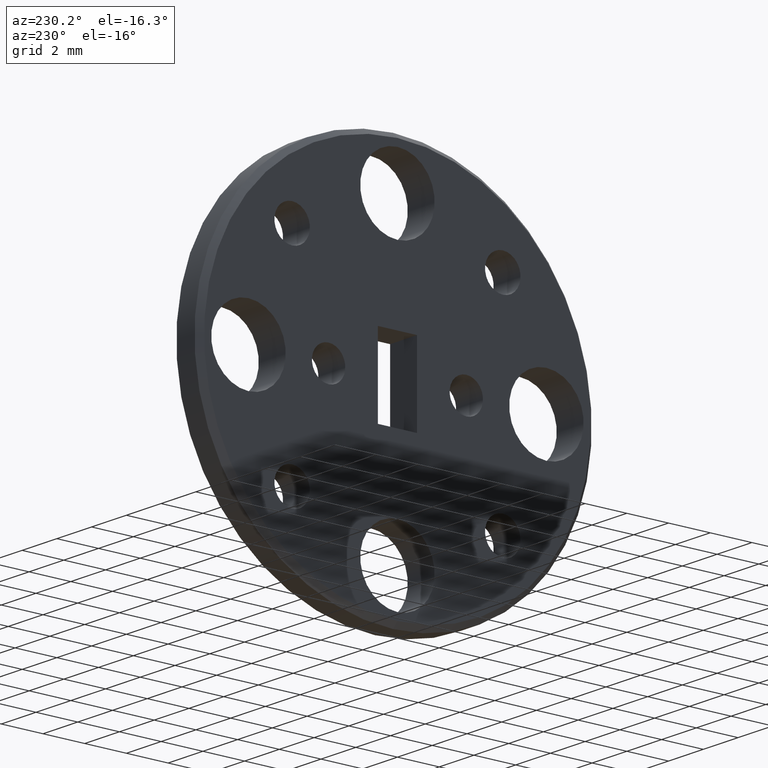
[diagram: clean part render]
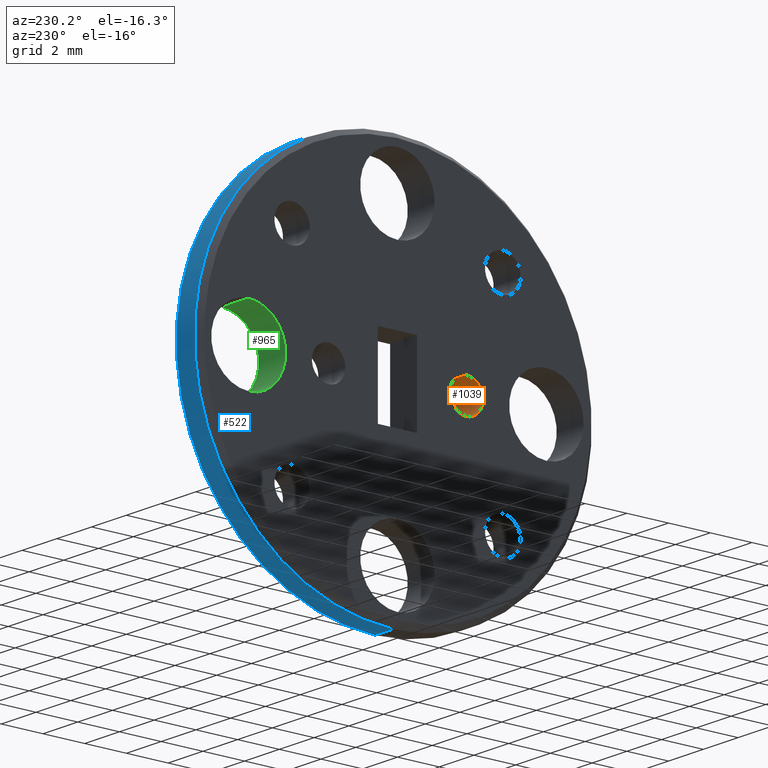
[diagram: same view with three faces highlighted in distinct colors, each labeled with its STEP entity id]
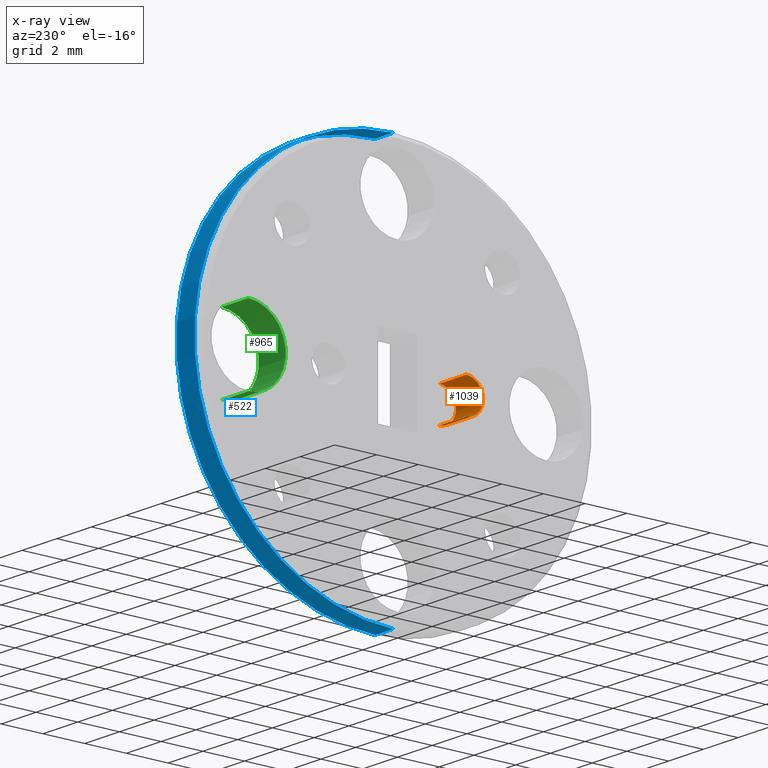
[diagram: x-ray of the same camera — body ghosted, the three highlighted faces saturated]
A machine part, auxiliary view with three faces highlighted in distinct colors.
The next image is the same camera in x-ray (body ghosted, the three faces saturated) — at least one of them is partly hidden behind the body in this view.
Their STEP definitions:

[orange] entity #1039 — the highlighted cylindrical surface (edge-blend (fillet) strip) has radius 0.8001 mm, axis along (-1, -0, -0).
#12 = ORIENTED_EDGE ( 'NONE', *, *, #174, .T. ) ;
#22 = ORIENTED_EDGE ( 'NONE', *, *, #876, .T. ) ;
#49 = CARTESIAN_POINT ( 'NONE',  ( 0.0000000000000000000, -0.1299999999999999800, 0.0000000000000000000 ) ) ;
#117 = CARTESIAN_POINT ( 'NONE',  ( -6.123233995736789800E-020, -0.1299999999999999800, -0.03149999999999999300 ) ) ;
#123 = CARTESIAN_POINT ( 'NONE',  ( 0.06100000000000001900, -0.1299999999999999800, 0.0000000000000000000 ) ) ;
#150 = DIRECTION ( 'NONE',  ( -1.000000000000000000, -0.0000000000000000000, -0.0000000000000000000 ) ) ;
#162 = VERTEX_POINT ( 'NONE', #117 ) ;
#174 = EDGE_CURVE ( 'NONE', #1105, #162, #629, .T. ) ;
#202 = ORIENTED_EDGE ( 'NONE', *, *, #398, .F. ) ;
#216 = CARTESIAN_POINT ( 'NONE',  ( 0.06100000000000001900, -0.1299999999999999800, 0.03149999999999999300 ) ) ;
#237 = LINE ( 'NONE', #769, #589 ) ;
#256 = VERTEX_POINT ( 'NONE', #216 ) ;
#315 = DIRECTION ( 'NONE',  ( 1.000000000000000000, -0.0000000000000000000, -0.0000000000000000000 ) ) ;
#322 = CIRCLE ( 'NONE', #572, 0.03149999999999999300 ) ;
#398 = EDGE_CURVE ( 'NONE', #256, #829, #237, .T. ) ;
#406 = FACE_OUTER_BOUND ( 'NONE', #936, .T. ) ;
#484 = CIRCLE ( 'NONE', #704, 0.03149999999999999300 ) ;
#503 = DIRECTION ( 'NONE',  ( 0.0000000000000000000, 0.0000000000000000000, 1.000000000000000000 ) ) ;
#572 = AXIS2_PLACEMENT_3D ( 'NONE', #943, #1024, #503 ) ;
#589 = VECTOR ( 'NONE', #610, 39.37007874015748100 ) ;
#610 = DIRECTION ( 'NONE',  ( -1.000000000000000000, -0.0000000000000000000, -0.0000000000000000000 ) ) ;
#629 = LINE ( 'NONE', #745, #797 ) ;
#674 = CARTESIAN_POINT ( 'NONE',  ( -6.123233995736789800E-020, -0.1299999999999999800, 0.03149999999999999300 ) ) ;
#676 = CYLINDRICAL_SURFACE ( 'NONE', #934, 0.03149999999999999300 ) ;
#704 = AXIS2_PLACEMENT_3D ( 'NONE', #123, #315, #1017 ) ;
#717 = CARTESIAN_POINT ( 'NONE',  ( 0.06100000000000001900, -0.1299999999999999800, -0.03149999999999999300 ) ) ;
#745 = CARTESIAN_POINT ( 'NONE',  ( 0.0000000000000000000, -0.1299999999999999800, -0.03149999999999999300 ) ) ;
#769 = CARTESIAN_POINT ( 'NONE',  ( 0.0000000000000000000, -0.1299999999999999800, 0.03149999999999999300 ) ) ;
#797 = VECTOR ( 'NONE', #920, 39.37007874015748100 ) ;
#829 = VERTEX_POINT ( 'NONE', #674 ) ;
#871 = DIRECTION ( 'NONE',  ( 0.0000000000000000000, 0.0000000000000000000, 1.000000000000000000 ) ) ;
#876 = EDGE_CURVE ( 'NONE', #256, #1105, #484, .T. ) ;
#894 = ORIENTED_EDGE ( 'NONE', *, *, #928, .T. ) ;
#920 = DIRECTION ( 'NONE',  ( -1.000000000000000000, -0.0000000000000000000, -0.0000000000000000000 ) ) ;
#928 = EDGE_CURVE ( 'NONE', #162, #829, #322, .T. ) ;
#934 = AXIS2_PLACEMENT_3D ( 'NONE', #49, #150, #871 ) ;
#936 = EDGE_LOOP ( 'NONE', ( #22, #12, #894, #202 ) ) ;
#943 = CARTESIAN_POINT ( 'NONE',  ( -6.123233995736789800E-020, -0.1299999999999999800, 0.0000000000000000000 ) ) ;
#1017 = DIRECTION ( 'NONE',  ( 0.0000000000000000000, 0.0000000000000000000, -1.000000000000000000 ) ) ;
#1024 = DIRECTION ( 'NONE',  ( -1.000000000000000000, -0.0000000000000000000, -0.0000000000000000000 ) ) ;
#1039 = ADVANCED_FACE ( 'NONE', ( #406 ), #676, .F. ) ;
#1105 = VERTEX_POINT ( 'NONE', #717 ) ;

[blue] entity #522 — the highlighted cylindrical surface (partial cylindrical patch) has radius 9.525 mm, axis along (1, -0, -0).
#5 = ORIENTED_EDGE ( 'NONE', *, *, #158, .T. ) ;
#24 = EDGE_CURVE ( 'NONE', #577, #890, #873, .T. ) ;
#78 = CARTESIAN_POINT ( 'NONE',  ( 0.01000000000000003000, 4.592425496802575500E-017, 0.3750000000000000600 ) ) ;
#101 = DIRECTION ( 'NONE',  ( 0.0000000000000000000, 0.0000000000000000000, -1.000000000000000000 ) ) ;
#106 = CARTESIAN_POINT ( 'NONE',  ( 0.0000000000000000000, 4.592425496802575500E-017, 0.3750000000000000600 ) ) ;
#144 = CARTESIAN_POINT ( 'NONE',  ( 0.05099999999999992000, 0.0000000000000000000, -0.3750000000000000600 ) ) ;
#153 = VERTEX_POINT ( 'NONE', #1103 ) ;
#158 = EDGE_CURVE ( 'NONE', #153, #577, #341, .T. ) ;
#207 = DIRECTION ( 'NONE',  ( 1.000000000000000000, -0.0000000000000000000, -0.0000000000000000000 ) ) ;
#265 = LINE ( 'NONE', #420, #278 ) ;
#278 = VECTOR ( 'NONE', #1118, 39.37007874015748100 ) ;
#281 = VECTOR ( 'NONE', #647, 39.37007874015748100 ) ;
#339 = CARTESIAN_POINT ( 'NONE',  ( 0.05099999999999992000, 0.0000000000000000000, 0.0000000000000000000 ) ) ;
#341 = CIRCLE ( 'NONE', #1080, 0.3750000000000000600 ) ;
#420 = CARTESIAN_POINT ( 'NONE',  ( 0.0000000000000000000, 0.0000000000000000000, -0.3750000000000000600 ) ) ;
#498 = FACE_OUTER_BOUND ( 'NONE', #818, .T. ) ;
#522 = ADVANCED_FACE ( 'NONE', ( #498 ), #599, .T. ) ;
#577 = VERTEX_POINT ( 'NONE', #78 ) ;
#599 = CYLINDRICAL_SURFACE ( 'NONE', #812, 0.3750000000000000600 ) ;
#647 = DIRECTION ( 'NONE',  ( 1.000000000000000000, -0.0000000000000000000, -0.0000000000000000000 ) ) ;
#665 = ORIENTED_EDGE ( 'NONE', *, *, #24, .T. ) ;
#759 = AXIS2_PLACEMENT_3D ( 'NONE', #339, #1132, #969 ) ;
#812 = AXIS2_PLACEMENT_3D ( 'NONE', #1144, #1054, #101 ) ;
#818 = EDGE_LOOP ( 'NONE', ( #5, #665, #1084, #988 ) ) ;
#873 = LINE ( 'NONE', #106, #281 ) ;
#890 = VERTEX_POINT ( 'NONE', #931 ) ;
#930 = DIRECTION ( 'NONE',  ( 0.0000000000000000000, 0.0000000000000000000, 1.000000000000000000 ) ) ;
#931 = CARTESIAN_POINT ( 'NONE',  ( 0.05099999999999992000, 4.592425496802575500E-017, 0.3750000000000000600 ) ) ;
#958 = VERTEX_POINT ( 'NONE', #144 ) ;
#962 = EDGE_CURVE ( 'NONE', #890, #958, #1060, .T. ) ;
#969 = DIRECTION ( 'NONE',  ( 0.0000000000000000000, 0.0000000000000000000, -1.000000000000000000 ) ) ;
#988 = ORIENTED_EDGE ( 'NONE', *, *, #1053, .F. ) ;
#1011 = CARTESIAN_POINT ( 'NONE',  ( 0.01000000000000003000, 0.0000000000000000000, 0.0000000000000000000 ) ) ;
#1053 = EDGE_CURVE ( 'NONE', #153, #958, #265, .T. ) ;
#1054 = DIRECTION ( 'NONE',  ( 1.000000000000000000, -0.0000000000000000000, -0.0000000000000000000 ) ) ;
#1060 = CIRCLE ( 'NONE', #759, 0.3750000000000000600 ) ;
#1080 = AXIS2_PLACEMENT_3D ( 'NONE', #1011, #207, #930 ) ;
#1084 = ORIENTED_EDGE ( 'NONE', *, *, #962, .T. ) ;
#1103 = CARTESIAN_POINT ( 'NONE',  ( 0.01000000000000003000, 0.0000000000000000000, -0.3750000000000000600 ) ) ;
#1118 = DIRECTION ( 'NONE',  ( 1.000000000000000000, -0.0000000000000000000, -0.0000000000000000000 ) ) ;
#1132 = DIRECTION ( 'NONE',  ( -1.000000000000000000, 0.0000000000000000000, 0.0000000000000000000 ) ) ;
#1144 = CARTESIAN_POINT ( 'NONE',  ( 0.0000000000000000000, 0.0000000000000000000, 0.0000000000000000000 ) ) ;

[green] entity #965 — the highlighted cylindrical surface (partial cylindrical patch) has radius 1.786 mm, axis along (-1, -0, -0).
#8 = CARTESIAN_POINT ( 'NONE',  ( -5.262123598916295500E-017, 0.2812500000000000600, 0.0000000000000000000 ) ) ;
#20 = CARTESIAN_POINT ( 'NONE',  ( -5.262123598916295500E-017, 0.2812500000000000600, -0.07031499999999954500 ) ) ;
#35 = DIRECTION ( 'NONE',  ( -1.000000000000000000, -0.0000000000000000000, -0.0000000000000000000 ) ) ;
#64 = CARTESIAN_POINT ( 'NONE',  ( 0.0000000000000000000, 0.2812500000000000600, 0.0000000000000000000 ) ) ;
#92 = EDGE_LOOP ( 'NONE', ( #1061, #592, #487, #1004 ) ) ;
#266 = VERTEX_POINT ( 'NONE', #880 ) ;
#317 = DIRECTION ( 'NONE',  ( 1.000000000000000000, -0.0000000000000000000, -0.0000000000000000000 ) ) ;
#338 = LINE ( 'NONE', #505, #778 ) ;
#368 = EDGE_CURVE ( 'NONE', #472, #612, #338, .T. ) ;
#394 = CYLINDRICAL_SURFACE ( 'NONE', #686, 0.07031499999999975300 ) ;
#401 = AXIS2_PLACEMENT_3D ( 'NONE', #8, #992, #435 ) ;
#425 = DIRECTION ( 'NONE',  ( -1.000000000000000000, -0.0000000000000000000, -0.0000000000000000000 ) ) ;
#435 = DIRECTION ( 'NONE',  ( 0.0000000000000000000, 0.0000000000000000000, 1.000000000000000000 ) ) ;
#472 = VERTEX_POINT ( 'NONE', #773 ) ;
#485 = EDGE_CURVE ( 'NONE', #612, #266, #996, .T. ) ;
#487 = ORIENTED_EDGE ( 'NONE', *, *, #485, .T. ) ;
#504 = DIRECTION ( 'NONE',  ( -1.000000000000000000, -0.0000000000000000000, -0.0000000000000000000 ) ) ;
#505 = CARTESIAN_POINT ( 'NONE',  ( 0.0000000000000000000, 0.2812500000000000600, -0.07031499999999975300 ) ) ;
#592 = ORIENTED_EDGE ( 'NONE', *, *, #368, .T. ) ;
#593 = CARTESIAN_POINT ( 'NONE',  ( 0.06100000000000001900, 0.2812500000000000600, 0.0000000000000000000 ) ) ;
#612 = VERTEX_POINT ( 'NONE', #20 ) ;
#673 = DIRECTION ( 'NONE',  ( 0.0000000000000000000, 0.0000000000000000000, -1.000000000000000000 ) ) ;
#686 = AXIS2_PLACEMENT_3D ( 'NONE', #64, #504, #1119 ) ;
#691 = FACE_OUTER_BOUND ( 'NONE', #92, .T. ) ;
#767 = CARTESIAN_POINT ( 'NONE',  ( 0.06100000000000001900, 0.2812500000000000600, 0.07031499999999975300 ) ) ;
#773 = CARTESIAN_POINT ( 'NONE',  ( 0.06100000000000001900, 0.2812500000000000600, -0.07031499999999975300 ) ) ;
#778 = VECTOR ( 'NONE', #425, 39.37007874015748100 ) ;
#817 = EDGE_CURVE ( 'NONE', #923, #472, #1031, .T. ) ;
#880 = CARTESIAN_POINT ( 'NONE',  ( -5.262123598916295500E-017, 0.2812500000000000600, 0.07031499999999954500 ) ) ;
#904 = EDGE_CURVE ( 'NONE', #923, #266, #1007, .T. ) ;
#923 = VERTEX_POINT ( 'NONE', #767 ) ;
#965 = ADVANCED_FACE ( 'NONE', ( #691 ), #394, .F. ) ;
#992 = DIRECTION ( 'NONE',  ( -1.000000000000000000, -0.0000000000000000000, -0.0000000000000000000 ) ) ;
#996 = CIRCLE ( 'NONE', #401, 0.07031499999999954500 ) ;
#1004 = ORIENTED_EDGE ( 'NONE', *, *, #904, .F. ) ;
#1007 = LINE ( 'NONE', #1104, #1046 ) ;
#1031 = CIRCLE ( 'NONE', #1154, 0.07031499999999975300 ) ;
#1046 = VECTOR ( 'NONE', #35, 39.37007874015748100 ) ;
#1061 = ORIENTED_EDGE ( 'NONE', *, *, #817, .T. ) ;
#1104 = CARTESIAN_POINT ( 'NONE',  ( 0.0000000000000000000, 0.2812500000000000600, 0.07031499999999975300 ) ) ;
#1119 = DIRECTION ( 'NONE',  ( 0.0000000000000000000, 0.0000000000000000000, 1.000000000000000000 ) ) ;
#1154 = AXIS2_PLACEMENT_3D ( 'NONE', #593, #317, #673 ) ;